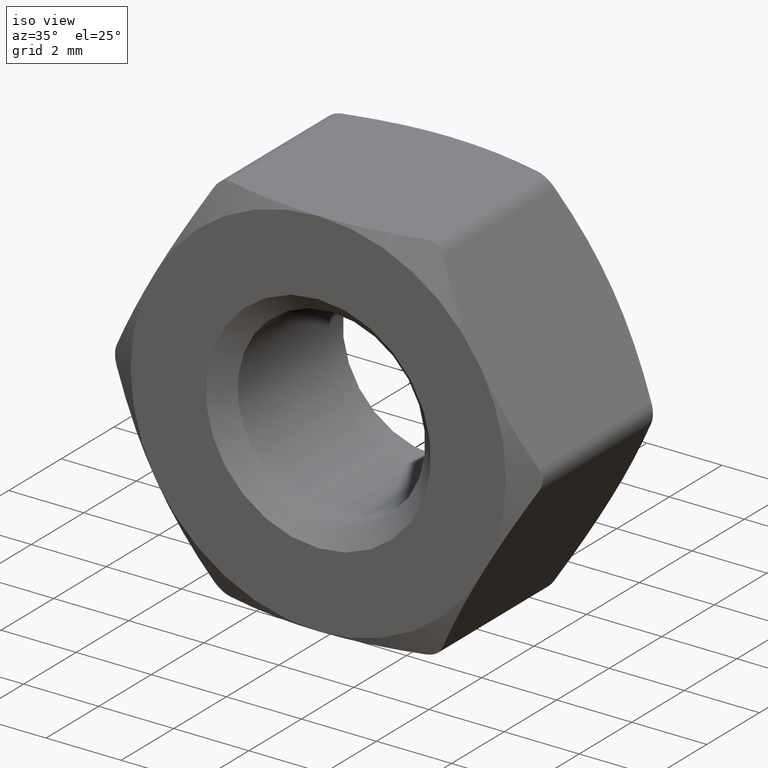
[diagram: clean part render]
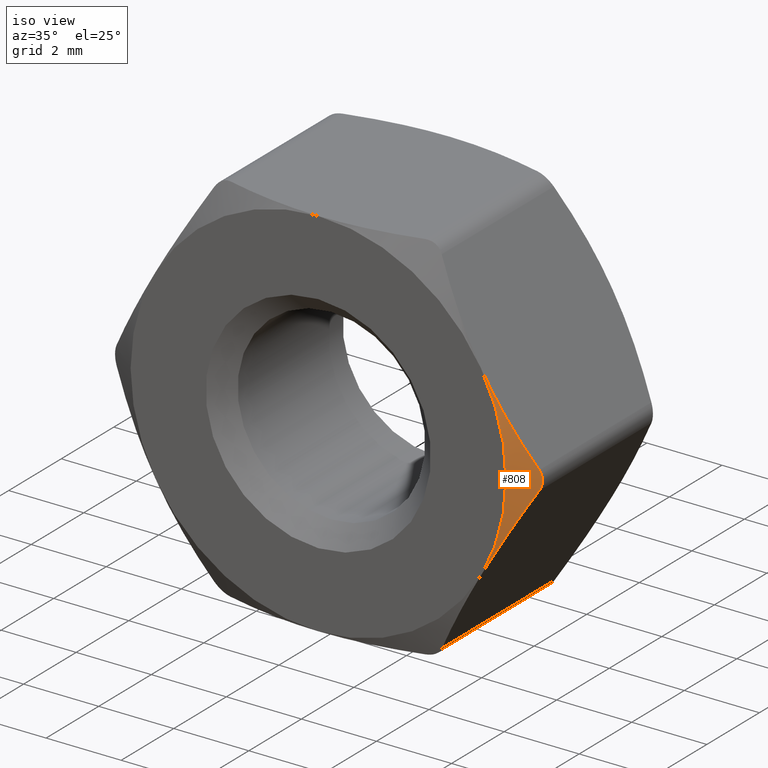
[diagram: same view with one face highlighted and labeled with its STEP entity id]
A machine part, iso view. The second image highlights one B-rep face of the part: STEP entity #808.
In plain terms, the highlighted conical surface has half-angle 60 deg.
Its self-contained STEP definition (entity closure, byte-faithful):
#32 = CARTESIAN_POINT ( 'NONE',  ( 5.629165124600557800, -2.133547796623369600, -0.2499999999970449500 ) ) ;
#61 = AXIS2_PLACEMENT_3D ( 'NONE', #934, #791, #1212 ) ;
#79 = CARTESIAN_POINT ( 'NONE',  ( 5.629165124600557800, -2.133547796623369600, -0.2499999999970449500 ) ) ;
#181 = FACE_OUTER_BOUND ( 'NONE', #1049, .T. ) ;
#252 = CARTESIAN_POINT ( 'NONE',  ( 5.629165124598853400, -2.133547796624276800, 0.2500000000000047200 ) ) ;
#280 = VERTEX_POINT ( 'NONE', #385 ) ;
#288 = CARTESIAN_POINT ( 'NONE',  ( 4.550137960196448000, -2.500000000000000400, 2.118929871491944400 ) ) ;
#316 = CARTESIAN_POINT ( 'NONE',  ( 5.203651303690525900, -2.360097271922225300, -0.9870115571359835400 ) ) ;
#348 = ORIENTED_EDGE ( 'NONE', *, *, #494, .F. ) ;
#377 = CARTESIAN_POINT ( 'NONE',  ( 5.672176000091755400, -2.110648208416782800, -0.1755029783682724400 ) ) ;
#385 = CARTESIAN_POINT ( 'NONE',  ( 5.629165124600557800, -2.133547796623369600, -0.2499999999970449500 ) ) ;
#469 = EDGE_CURVE ( 'NONE', #280, #677, #1132, .T. ) ;
#494 = EDGE_CURVE ( 'NONE', #833, #1547, #867, .T. ) ;
#579 = CARTESIAN_POINT ( 'NONE',  ( 5.416897631432972200, -2.246561961703187600, 0.6176580829585907000 ) ) ;
#657 = CARTESIAN_POINT ( 'NONE',  ( 4.330127018922192800, -2.500000000000000000, -2.500000000000000000 ) ) ;
#677 = VERTEX_POINT ( 'NONE', #252 ) ;
#680 = CARTESIAN_POINT ( 'NONE',  ( 4.770156486568010800, -2.465603583740587200, 1.737846605209969300 ) ) ;
#769 = CARTESIAN_POINT ( 'NONE',  ( 5.696228875202474600, -2.098035946016741700, 0.08754741462736166700 ) ) ;
#791 = DIRECTION ( 'NONE',  ( -0.0000000000000000000, -1.000000000000000000, -0.0000000000000000000 ) ) ;
#808 = ADVANCED_FACE ( 'NONE', ( #181 ), #1054, .T. ) ;
#833 = VERTEX_POINT ( 'NONE', #657 ) ;
#840 = CARTESIAN_POINT ( 'NONE',  ( 5.202901597395192600, -2.338705476013392700, 0.9883100865302608700 ) ) ;
#867 = CIRCLE ( 'NONE', #61, 4.999999999999999100 ) ;
#934 = CARTESIAN_POINT ( 'NONE',  ( -3.386450907888040500E-016, -2.500000000000000000, 1.173101005959984800E-015 ) ) ;
#1027 = B_SPLINE_CURVE_WITH_KNOTS ( 'NONE', 3,
 ( #1250, #288, #680, #840, #579, #1486 ),
 .UNSPECIFIED., .F., .F.,
 ( 4, 2, 4 ),
 ( 0.002921158011986707300, 0.004227809343379583400, 0.005534460674772459900 ),
 .UNSPECIFIED. ) ;
#1049 = EDGE_LOOP ( 'NONE', ( #1458, #1480, #1207, #348 ) ) ;
#1054 = CONICAL_SURFACE ( 'NONE', #1345, 4.999999999999999100, 1.047197551196604100 ) ;
#1132 = B_SPLINE_CURVE_WITH_KNOTS ( 'NONE', 3,
 ( #79, #377, #1320, #769, #1717, #1481 ),
 .UNSPECIFIED., .F., .F.,
 ( 4, 2, 4 ),
 ( 3.307764964376743700E-015, 0.0002635016616933986100, 0.0005270033233834895400 ),
 .UNSPECIFIED. ) ;
#1169 = EDGE_CURVE ( 'NONE', #280, #833, #1688, .T. ) ;
#1207 = ORIENTED_EDGE ( 'NONE', *, *, #1591, .F. ) ;
#1212 = DIRECTION ( 'NONE',  ( 1.776356839400250500E-015, 0.0000000000000000000, 1.000000000000000000 ) ) ;
#1250 = CARTESIAN_POINT ( 'NONE',  ( 4.330127018922192800, -2.500000000000000000, 2.500000000000000400 ) ) ;
#1264 = CARTESIAN_POINT ( 'NONE',  ( 4.330127018922192800, -2.500000000000000000, -2.500000000000000000 ) ) ;
#1320 = CARTESIAN_POINT ( 'NONE',  ( 5.696075590801037900, -2.098116676514132400, -0.08841851701547436000 ) ) ;
#1345 = AXIS2_PLACEMENT_3D ( 'NONE', #1455, #1719, #1472 ) ;
#1378 = CARTESIAN_POINT ( 'NONE',  ( 4.330127018922192800, -2.500000000000000000, 2.500000000000000400 ) ) ;
#1455 = CARTESIAN_POINT ( 'NONE',  ( -3.386450907888040500E-016, -2.499999999999999600, 0.0000000000000000000 ) ) ;
#1458 = ORIENTED_EDGE ( 'NONE', *, *, #1169, .F. ) ;
#1472 = DIRECTION ( 'NONE',  ( 1.000000000000000000, -1.734723475976807300E-016, 0.0000000000000000000 ) ) ;
#1480 = ORIENTED_EDGE ( 'NONE', *, *, #469, .T. ) ;
#1481 = CARTESIAN_POINT ( 'NONE',  ( 5.629165124598853400, -2.133547796624276800, 0.2500000000000047200 ) ) ;
#1486 = CARTESIAN_POINT ( 'NONE',  ( 5.629165124598853400, -2.133547796624276800, 0.2500000000000047200 ) ) ;
#1498 = CARTESIAN_POINT ( 'NONE',  ( 4.771913713798933400, -2.500000000000003600, -1.734802998365556400 ) ) ;
#1547 = VERTEX_POINT ( 'NONE', #1378 ) ;
#1591 = EDGE_CURVE ( 'NONE', #1547, #677, #1027, .T. ) ;
#1688 = B_SPLINE_CURVE_WITH_KNOTS ( 'NONE', 3,
 ( #32, #316, #1498, #1264 ),
 .UNSPECIFIED., .F., .F.,
 ( 4, 4 ),
 ( 0.0002973740778378693300, 0.002921158011986718100 ),
 .UNSPECIFIED. ) ;
#1717 = CARTESIAN_POINT ( 'NONE',  ( 5.672189980987818500, -2.110640764794212500, 0.1754787627459657400 ) ) ;
#1719 = DIRECTION ( 'NONE',  ( 1.354580363155216500E-016, 1.000000000000000000, 0.0000000000000000000 ) ) ;